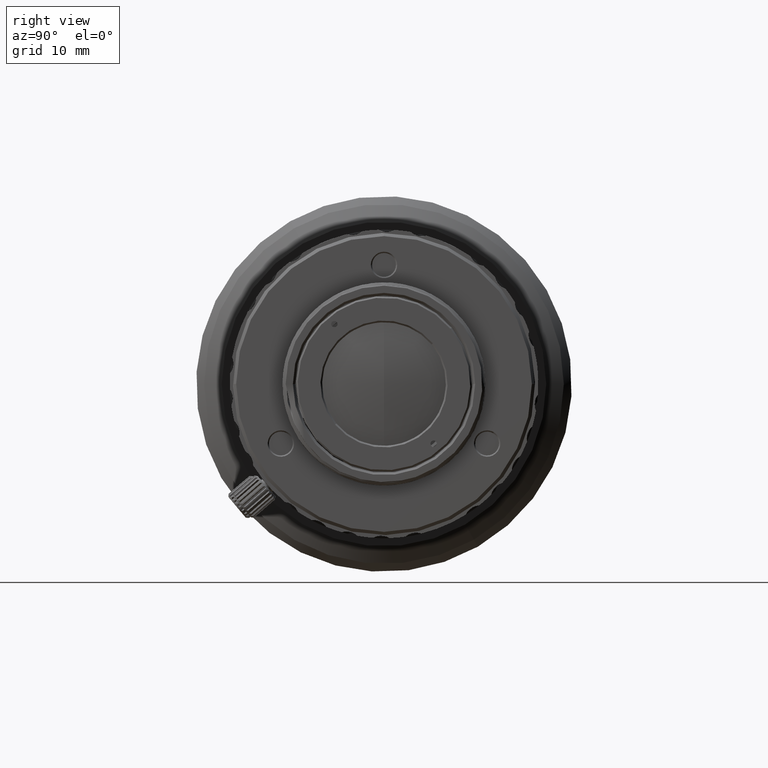
[diagram: clean part render]
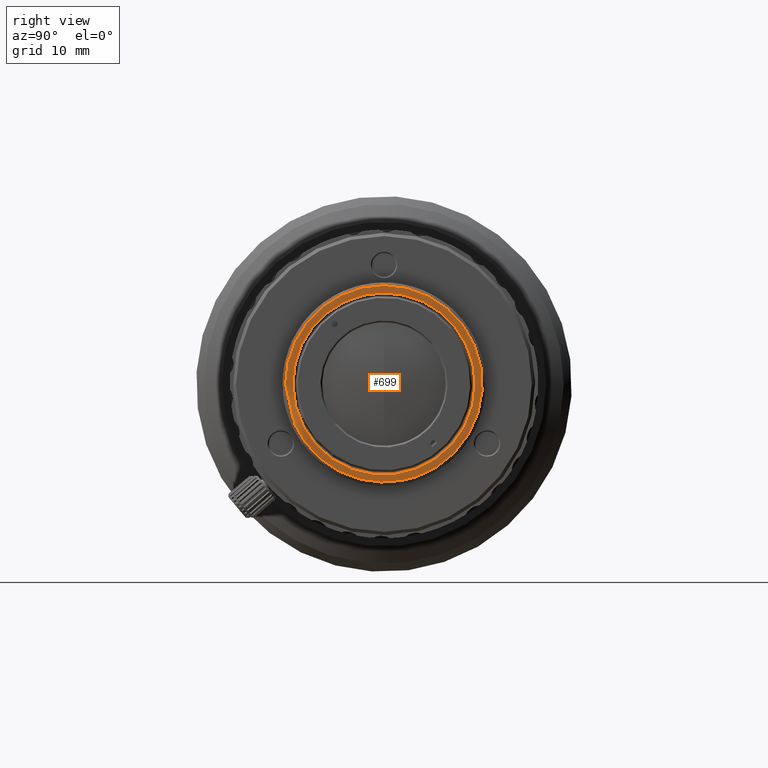
[diagram: same view with one face highlighted and labeled with its STEP entity id]
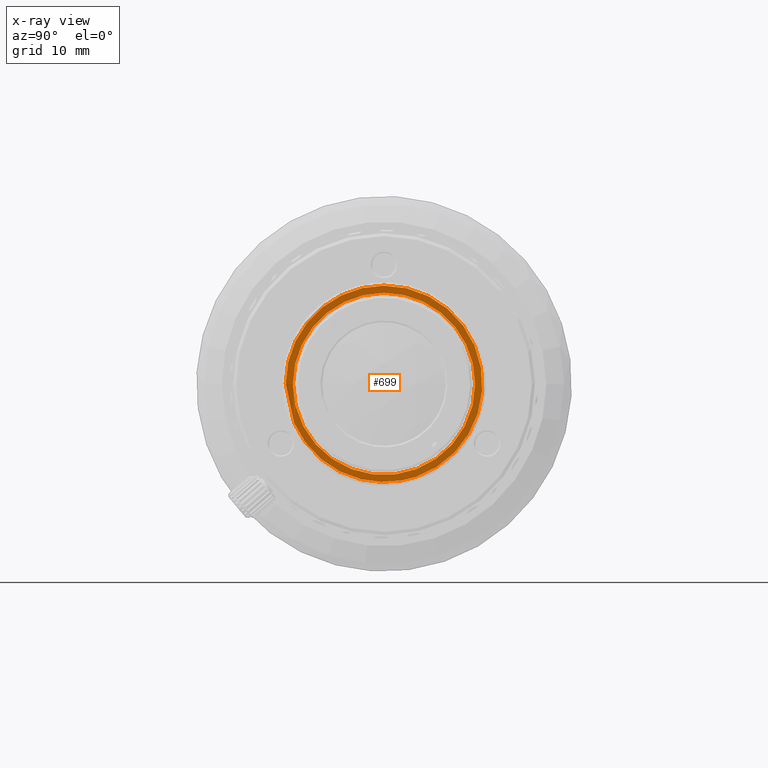
[diagram: x-ray of the same camera — body ghosted, the highlighted face saturated]
A machine part, right view. The second image highlights one B-rep face of the part: STEP entity #699.
The next image is the same camera in x-ray: the body ghosted, the highlighted face saturated — about 0% of this face is hidden behind the body in this view.
In plain terms, the highlighted planar face has unit normal (1, 0, 0).
Its self-contained STEP definition (entity closure, byte-faithful):
#171 = CARTESIAN_POINT ( 'NONE',  ( 4.500000000000000000, 0.000000000000000000, 11.40000000000300062 ) ) ;
#699 = ADVANCED_FACE ( 'NONE', ( #21634, #35633 ), #60486, .T. ) ;
#1509 = CARTESIAN_POINT ( 'NONE',  ( 4.500000000000000000, -11.24947551972368132, -4.889780246600370361 ) ) ;
#2656 = CARTESIAN_POINT ( 'NONE',  ( 4.500000000000000000, -6.376244732320158981, -10.50040893678676390 ) ) ;
#3338 = ORIENTED_EDGE ( 'NONE', *, *, #3840, .T. ) ;
#3840 = EDGE_CURVE ( 'NONE', #37539, #33540, #29430, .T. ) ;
#5059 = CARTESIAN_POINT ( 'NONE',  ( 4.500000000000000000, 2.208352745356039204, -12.06656122945900123 ) ) ;
#5594 = B_SPLINE_CURVE_WITH_KNOTS ( 'NONE', 3,
 ( #32291, #18264, #51408, #13174 ),
 .UNSPECIFIED., .F., .F.,
 ( 4, 4 ),
 ( 0.000000000000000000, 1.000000000000000000 ),
 .UNSPECIFIED. ) ;
#6107 = EDGE_CURVE ( 'NONE', #33540, #29337, #44881, .T. ) ;
#6238 = ORIENTED_EDGE ( 'NONE', *, *, #49242, .T. ) ;
#11127 = DIRECTION ( 'NONE',  ( 1.000000000000000000, 0.000000000000000000, 0.000000000000000000 ) ) ;
#11252 = DIRECTION ( 'NONE',  ( -1.000000000000000000, 0.000000000000000000, 0.000000000000000000 ) ) ;
#11340 = CIRCLE ( 'NONE', #19423, 12.30000000000000071 ) ;
#11371 = AXIS2_PLACEMENT_3D ( 'NONE', #41320, #50281, #60772 ) ;
#12044 = CARTESIAN_POINT ( 'NONE',  ( 4.500000000000000000, 0.000000000000000000, 12.30000000000500116 ) ) ;
#12410 = DIRECTION ( 'NONE',  ( 1.000000000000000000, 0.000000000000000000, 0.000000000000000000 ) ) ;
#13174 = CARTESIAN_POINT ( 'NONE',  ( 4.500000000000000000, -11.24947551972368132, -4.889780246600370361 ) ) ;
#13296 = DIRECTION ( 'NONE',  ( 0.000000000000000000, 0.3247389754757999403, -0.9458036782582989188 ) ) ;
#13681 = CARTESIAN_POINT ( 'NONE',  ( 4.500000000000000000, 3.053405179452850060, -11.90421868474959943 ) ) ;
#14621 = CARTESIAN_POINT ( 'NONE',  ( 4.500000000000000000, 3.994033601424960445, -11.63259524173339976 ) ) ;
#14922 = CARTESIAN_POINT ( 'NONE',  ( 4.500000000000000000, 2.209396695068400085, -12.06638930717210023 ) ) ;
#16270 = CARTESIAN_POINT ( 'NONE',  ( 4.500000000000000000, -11.40000000000000036, 0.000000000000000000 ) ) ;
#16339 = DIRECTION ( 'NONE',  ( -1.000000000000000000, 0.000000000000000000, 0.000000000000000000 ) ) ;
#16959 = DIRECTION ( 'NONE',  ( 0.000000000000000000, -1.000000000000000000, 0.000000000000000000 ) ) ;
#16988 = CARTESIAN_POINT ( 'NONE',  ( 4.500000000000000000, -7.234129301935364076, -9.945182588471933371 ) ) ;
#17297 = CARTESIAN_POINT ( 'NONE',  ( 4.499999999999999112, -5.158616870212022754, -11.13524758385629454 ) ) ;
#17433 = AXIS2_PLACEMENT_3D ( 'NONE', #21353, #12410, #61461 ) ;
#17905 = B_SPLINE_CURVE_WITH_KNOTS ( 'NONE', 3,
 ( #22484, #55916, #41875, #45735 ),
 .UNSPECIFIED., .F., .F.,
 ( 4, 4 ),
 ( 0.000000000000000000, 1.000000000000000000 ),
 .UNSPECIFIED. ) ;
#17945 = CARTESIAN_POINT ( 'NONE',  ( 3.728928711420409936, -11.24943357319179960, -4.889770165013570313 ) ) ;
#18194 = ORIENTED_EDGE ( 'NONE', *, *, #54724, .T. ) ;
#18264 = CARTESIAN_POINT ( 'NONE',  ( 4.500000000000000000, -11.89310016288884597, -3.144812475736456392 ) ) ;
#18770 = CARTESIAN_POINT ( 'NONE',  ( 4.500000000000000000, 3.994071914930086731, -11.63258283607976118 ) ) ;
#19170 = CARTESIAN_POINT ( 'NONE',  ( 4.500000000000001776, -4.531885730131204326, -11.40559432079391478 ) ) ;
#19423 = AXIS2_PLACEMENT_3D ( 'NONE', #37472, #27021, #13296 ) ;
#20089 = B_SPLINE_CURVE_WITH_KNOTS ( 'NONE', 3,
 ( #27503, #37331, #46909, #22718, #26876, #56774, #27817, #16988, #2656, #22081, #17297, #19170, #24268, #23326, #29068, #43681, #62191 ),
 .UNSPECIFIED., .F., .F.,
 ( 4, 2, 2, 1, 1, 2, 2, 1, 2, 4 ),
 ( 0.000000000000000000, 0.2499761918336142474, 0.2812232158128159520, 0.3124702397920177122, 0.3749642877504211769, 0.4999523836672284394, 0.5624464316256320151, 0.6249404795840357574, 0.7499285755008427978, 0.9999047673344569898 ),
 .UNSPECIFIED. ) ;
#20475 = VERTEX_POINT ( 'NONE', #17945 ) ;
#20813 = DIRECTION ( 'NONE',  ( 0.000000000000000000, 1.000000000000000000, 0.000000000000000000 ) ) ;
#21353 = CARTESIAN_POINT ( 'NONE',  ( 4.500000000000000000, 0.000000000000000000, 0.000000000000000000 ) ) ;
#21634 = FACE_OUTER_BOUND ( 'NONE', #25993, .T. ) ;
#22081 = CARTESIAN_POINT ( 'NONE',  ( 4.500000000000000000, -5.468169663570049188, -10.98592632057373741 ) ) ;
#22484 = CARTESIAN_POINT ( 'NONE',  ( 4.499153546032999884, -12.30317736019999941, -0.001412013828592000074 ) ) ;
#22718 = CARTESIAN_POINT ( 'NONE',  ( 4.499999999999999112, -8.882860431300741766, -8.452701799489013013 ) ) ;
#23326 = CARTESIAN_POINT ( 'NONE',  ( 4.500000000000000000, -2.579270624186543959, -12.01256005821125861 ) ) ;
#24268 = CARTESIAN_POINT ( 'NONE',  ( 4.499999999999999112, -3.577304682869530517, -11.77029953152123021 ) ) ;
#24901 = CIRCLE ( 'NONE', #53261, 11.40000000000000036 ) ;
#25021 = EDGE_LOOP ( 'NONE', ( #45089, #40669, #54664 ) ) ;
#25993 = EDGE_LOOP ( 'NONE', ( #54478, #28776, #3338, #57301, #18194, #6238 ) ) ;
#26876 = CARTESIAN_POINT ( 'NONE',  ( 4.499999999999999112, -8.763775340207175191, -8.576225815051444101 ) ) ;
#27021 = DIRECTION ( 'NONE',  ( 1.000000000000000000, 0.000000000000000000, 0.000000000000000000 ) ) ;
#27406 = AXIS2_PLACEMENT_3D ( 'NONE', #45191, #11127, #49651 ) ;
#27503 = CARTESIAN_POINT ( 'NONE',  ( 4.500000000000000000, -11.24947551972368132, -4.889780246600370361 ) ) ;
#27817 = CARTESIAN_POINT ( 'NONE',  ( 4.500000000000000888, -8.147161259667026201, -9.175427827514202050 ) ) ;
#28776 = ORIENTED_EDGE ( 'NONE', *, *, #45218, .T. ) ;
#29068 = CARTESIAN_POINT ( 'NONE',  ( 4.500000000000000000, -0.5252651582588079293, -12.33382153287493743 ) ) ;
#29330 = EDGE_CURVE ( 'NONE', #33555, #59122, #41835, .T. ) ;
#29337 = VERTEX_POINT ( 'NONE', #12044 ) ;
#29430 = B_SPLINE_CURVE_WITH_KNOTS ( 'NONE', 3,
 ( #33725, #5059, #57314, #14922, #48072, #13681, #43911, #38810, #14621, #34038, #18770, #58566 ),
 .UNSPECIFIED., .F., .F.,
 ( 4, 3, 2, 3, 4 ),
 ( -0.0008638907440210670573, 0.000000000000000000, 0.7010332760236870353, 1.000000000000000000, 1.000032845695870032 ),
 .UNSPECIFIED. ) ;
#30694 = CARTESIAN_POINT ( 'NONE',  ( 4.500000000000000000, 0.000000000000000000, 0.000000000000000000 ) ) ;
#31610 = CARTESIAN_POINT ( 'NONE',  ( 4.500000000000000000, 0.000000000000000000, 0.000000000000000000 ) ) ;
#32198 = CARTESIAN_POINT ( 'NONE',  ( 4.499153546032999884, -12.30317736019999941, -0.001412013828592000074 ) ) ;
#32291 = CARTESIAN_POINT ( 'NONE',  ( 4.500000000000000000, -12.06270202166349925, -2.228938888065280288 ) ) ;
#33540 = VERTEX_POINT ( 'NONE', #44308 ) ;
#33555 = VERTEX_POINT ( 'NONE', #16270 ) ;
#33725 = CARTESIAN_POINT ( 'NONE',  ( 4.500000000009589662, 2.207830656306175143, -12.06664649719343885 ) ) ;
#34038 = CARTESIAN_POINT ( 'NONE',  ( 4.500000000000000000, 3.994052758177523810, -11.63258903890658047 ) ) ;
#35514 = VERTEX_POINT ( 'NONE', #36035 ) ;
#35633 = FACE_BOUND ( 'NONE', #25021, .T. ) ;
#36035 = CARTESIAN_POINT ( 'NONE',  ( 4.500000000000000000, 11.40000000000000036, 0.000000000000000000 ) ) ;
#37331 = CARTESIAN_POINT ( 'NONE',  ( 4.500000000000000000, -10.70115261356006009, -6.152623928429529876 ) ) ;
#37472 = CARTESIAN_POINT ( 'NONE',  ( 4.500000000000000000, 0.000000000000000000, 0.000000000000000000 ) ) ;
#37539 = VERTEX_POINT ( 'NONE', #54874 ) ;
#37569 = EDGE_CURVE ( 'NONE', #59122, #35514, #24901, .T. ) ;
#38810 = CARTESIAN_POINT ( 'NONE',  ( 4.500000000000000000, 3.819665806674100050, -11.68905435347559951 ) ) ;
#40669 = ORIENTED_EDGE ( 'NONE', *, *, #29330, .T. ) ;
#41320 = CARTESIAN_POINT ( 'NONE',  ( 4.500000000000000000, 0.000000000000000000, 0.000000000000000000 ) ) ;
#41835 = CIRCLE ( 'NONE', #11371, 11.40000000000000036 ) ;
#41875 = CARTESIAN_POINT ( 'NONE',  ( 4.500000000000000000, -12.21203665313727349, -1.491548562040845960 ) ) ;
#43681 = CARTESIAN_POINT ( 'NONE',  ( 4.499999999999999112, 0.8421548222079483503, -12.31614466924700579 ) ) ;
#43911 = CARTESIAN_POINT ( 'NONE',  ( 4.500000000000000000, 3.643999583583499735, -11.74165142204180157 ) ) ;
#44308 = CARTESIAN_POINT ( 'NONE',  ( 4.499433427296100518, 3.994393301846439925, -11.63351003807530049 ) ) ;
#44881 = CIRCLE ( 'NONE', #17433, 12.30000000000000071 ) ;
#45089 = ORIENTED_EDGE ( 'NONE', *, *, #53609, .T. ) ;
#45191 = CARTESIAN_POINT ( 'NONE',  ( 4.500000000000000000, 0.000000000000000000, 0.000000000000000000 ) ) ;
#45218 = EDGE_CURVE ( 'NONE', #47389, #37539, #20089, .T. ) ;
#45735 = CARTESIAN_POINT ( 'NONE',  ( 4.500000000000000000, -12.06225776141870121, -2.227459971779850001 ) ) ;
#46909 = CARTESIAN_POINT ( 'NONE',  ( 4.500000000000000888, -9.951873667841727666, -7.297479189026912394 ) ) ;
#47097 = VERTEX_POINT ( 'NONE', #32198 ) ;
#47389 = VERTEX_POINT ( 'NONE', #1509 ) ;
#48072 = CARTESIAN_POINT ( 'NONE',  ( 4.500000000000000000, 2.632970793949209742, -11.99663323857079966 ) ) ;
#49242 = EDGE_CURVE ( 'NONE', #47097, #20475, #17905, .T. ) ;
#49651 = DIRECTION ( 'NONE',  ( 0.000000000000000000, 1.000000000000000000, 0.000000000000000000 ) ) ;
#50281 = DIRECTION ( 'NONE',  ( -1.000000000000000000, 0.000000000000000000, 0.000000000000000000 ) ) ;
#50921 = AXIS2_PLACEMENT_3D ( 'NONE', #30694, #16339, #20813 ) ;
#51408 = CARTESIAN_POINT ( 'NONE',  ( 4.500000000000000000, -11.62202499480538087, -4.031758829319509907 ) ) ;
#51666 = EDGE_CURVE ( 'NONE', #20475, #47389, #5594, .T. ) ;
#53261 = AXIS2_PLACEMENT_3D ( 'NONE', #31610, #11252, #16959 ) ;
#53609 = EDGE_CURVE ( 'NONE', #35514, #33555, #62114, .T. ) ;
#54478 = ORIENTED_EDGE ( 'NONE', *, *, #51666, .T. ) ;
#54664 = ORIENTED_EDGE ( 'NONE', *, *, #37569, .T. ) ;
#54724 = EDGE_CURVE ( 'NONE', #29337, #47097, #11340, .T. ) ;
#54874 = CARTESIAN_POINT ( 'NONE',  ( 4.500000000009589662, 2.207830656306175143, -12.06664649719343885 ) ) ;
#55916 = CARTESIAN_POINT ( 'NONE',  ( 4.500000000000000000, -12.29355357468254084, -0.7495540225497970832 ) ) ;
#56774 = CARTESIAN_POINT ( 'NONE',  ( 4.500000000000000000, -8.519639232947861629, -8.819392068262942530 ) ) ;
#57301 = ORIENTED_EDGE ( 'NONE', *, *, #6107, .T. ) ;
#57314 = CARTESIAN_POINT ( 'NONE',  ( 4.500000000000000000, 2.208874720212219867, -12.06647526831554984 ) ) ;
#58566 = CARTESIAN_POINT ( 'NONE',  ( 4.499433427296100518, 3.994393301846439925, -11.63351003807530049 ) ) ;
#59122 = VERTEX_POINT ( 'NONE', #171 ) ;
#60486 = PLANE ( 'NONE',  #27406 ) ;
#60772 = DIRECTION ( 'NONE',  ( 0.000000000000000000, -1.000000000000000000, 0.000000000000000000 ) ) ;
#61461 = DIRECTION ( 'NONE',  ( 0.000000000000000000, 0.3247389754757999403, -0.9458036782582989188 ) ) ;
#62114 = CIRCLE ( 'NONE', #50921, 11.40000000000000036 ) ;
#62191 = CARTESIAN_POINT ( 'NONE',  ( 4.500000000009589662, 2.207830656306175143, -12.06664649719343885 ) ) ;